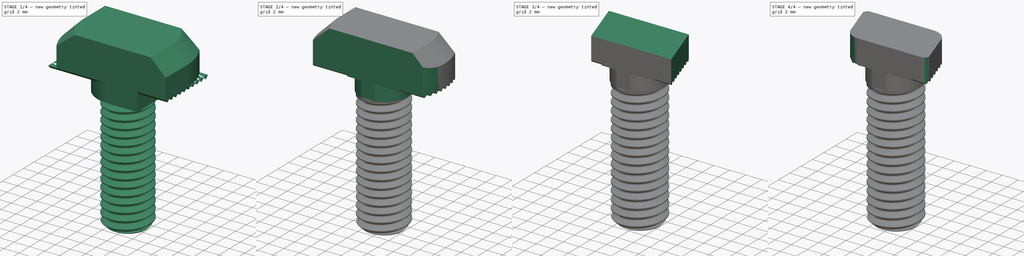
[diagram: build sequence overview — one tinted view per stage of 4, left to right]
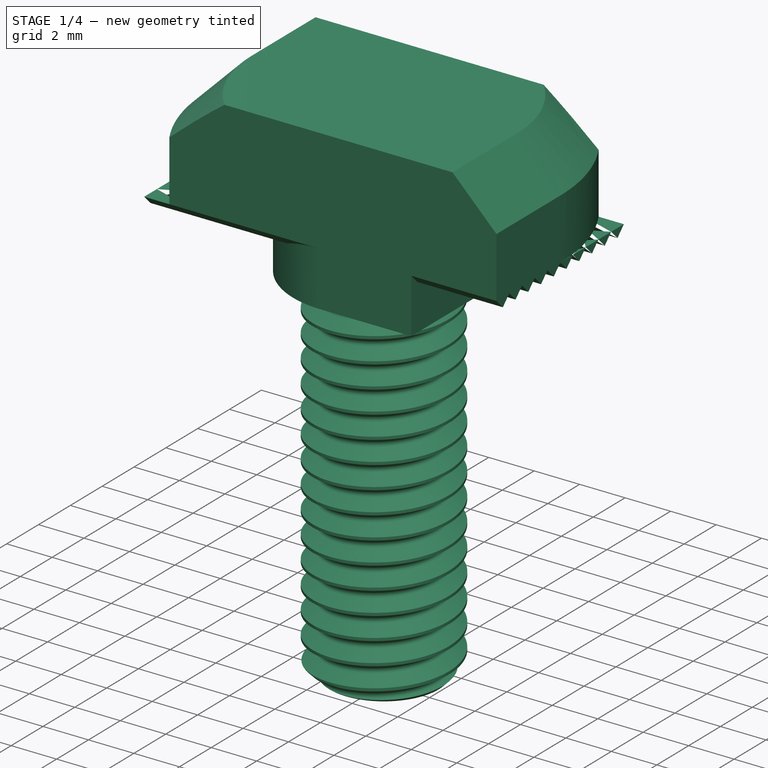
[diagram: stage 1 of 4 — iso view after this stage's code; geometry added in this stage tinted green]
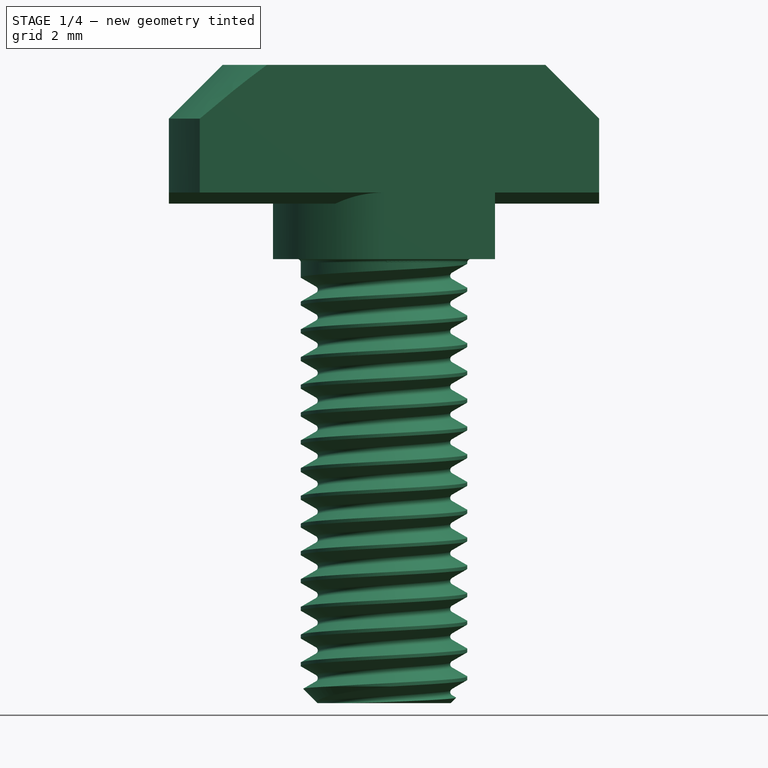
[diagram: stage 1 of 4 — front view after this stage's code; geometry added in this stage tinted green]
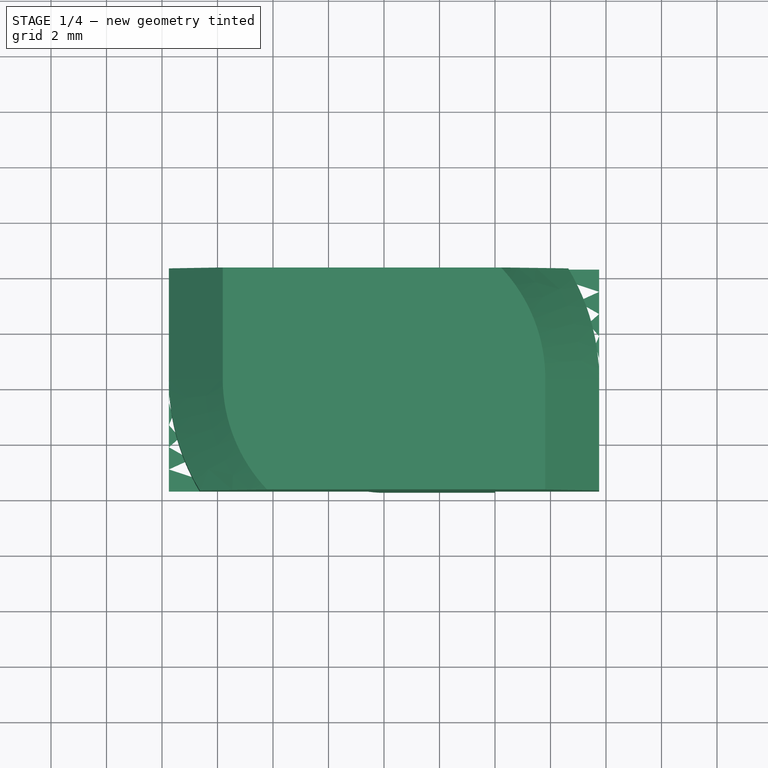
[diagram: stage 1 of 4 — top view after this stage's code; geometry added in this stage tinted green]
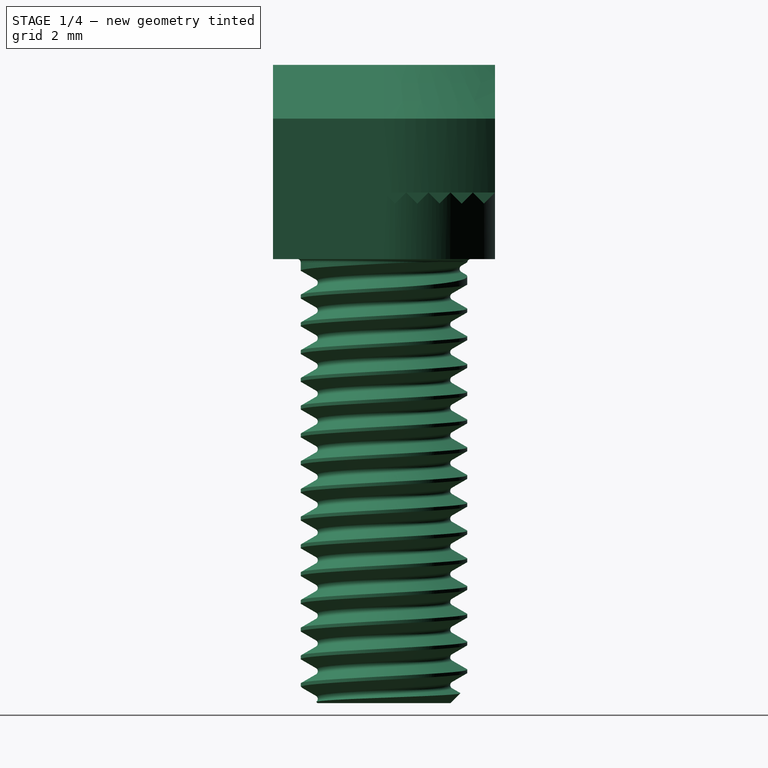
[diagram: stage 1 of 4 — right view after this stage's code; geometry added in this stage tinted green]
FCSTD DOCUMENT  (FreeCAD 2024.2R37179 (Git))
Label: T nut M6
License: All rights reserved
LicenseURL: https://en.wikipedia.org/wiki/All_rights_reserved
objects: Sketcher::SketchObject×6, PartDesign::Pocket×6, PartDesign::Fillet×2, Part::FeaturePython×1, PartDesign::FeatureBase×1, PartDesign::Body×1
note: 25 computed .brp shape members not serialized (recipe doc carries the construction recipe); baked Part::Feature solids carry a one-line shape summary decoded from their .brp

FEATURE [Part::FeaturePython] TSlot  label="M6x16 x 30 series-TSlot"  # WARN: FeaturePython — macro-defined, semantics opaque (R4)
  Diameter = 2
  Invert = false
  LeftHanded = false
  Length = 1
  LengthCustom = 12
  MatchOuter = false
  OffsetAngle = 0
  SlotWidth = 0
  Thread = true
  Type = 0
FEATURE [PartDesign::FeatureBase] BaseFeature
  BaseFeature = -> TSlot
  Suppressed = false
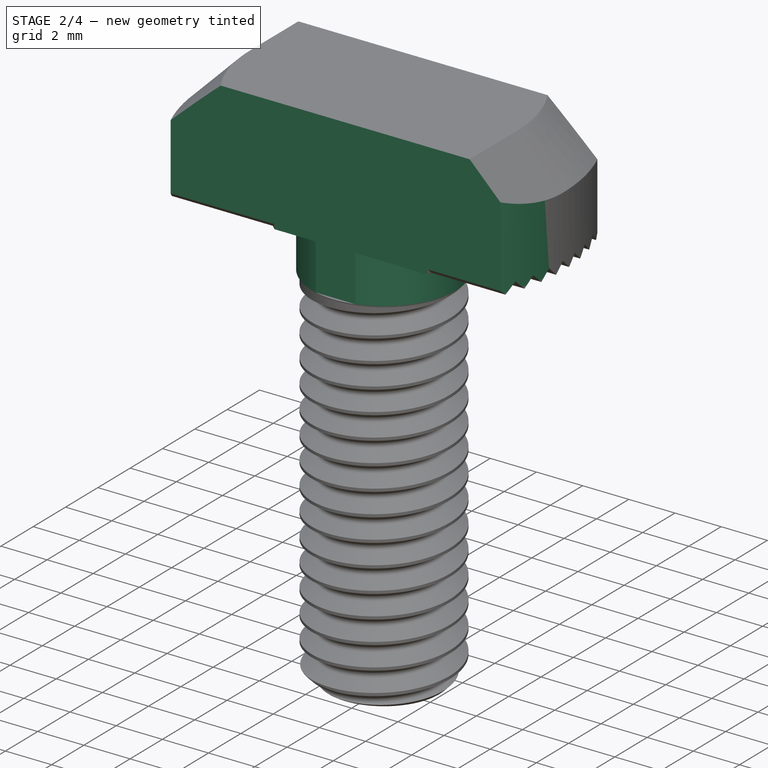
[diagram: stage 2 of 4 — iso view after this stage's code; geometry added in this stage tinted green]
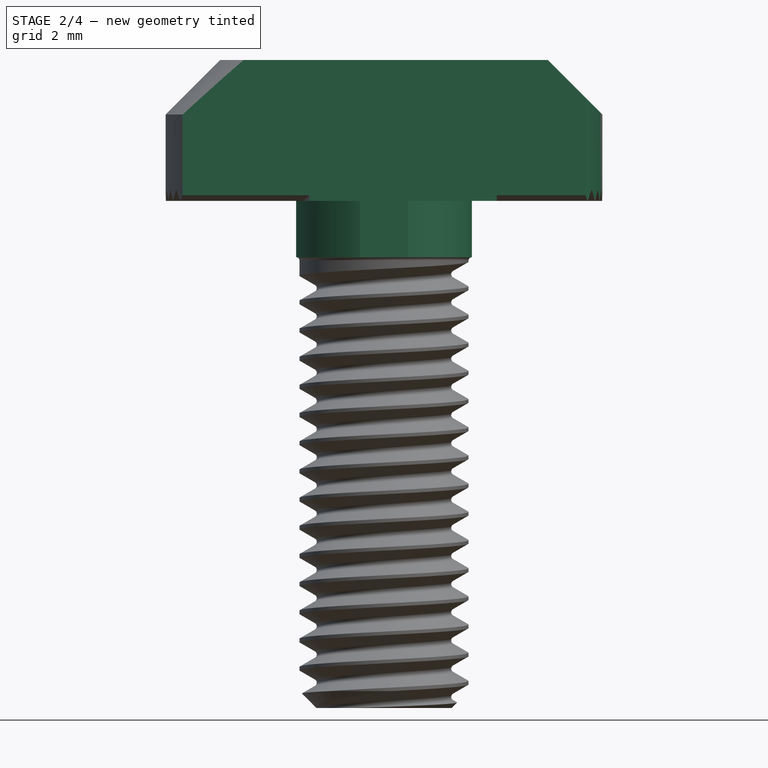
[diagram: stage 2 of 4 — front view after this stage's code; geometry added in this stage tinted green]
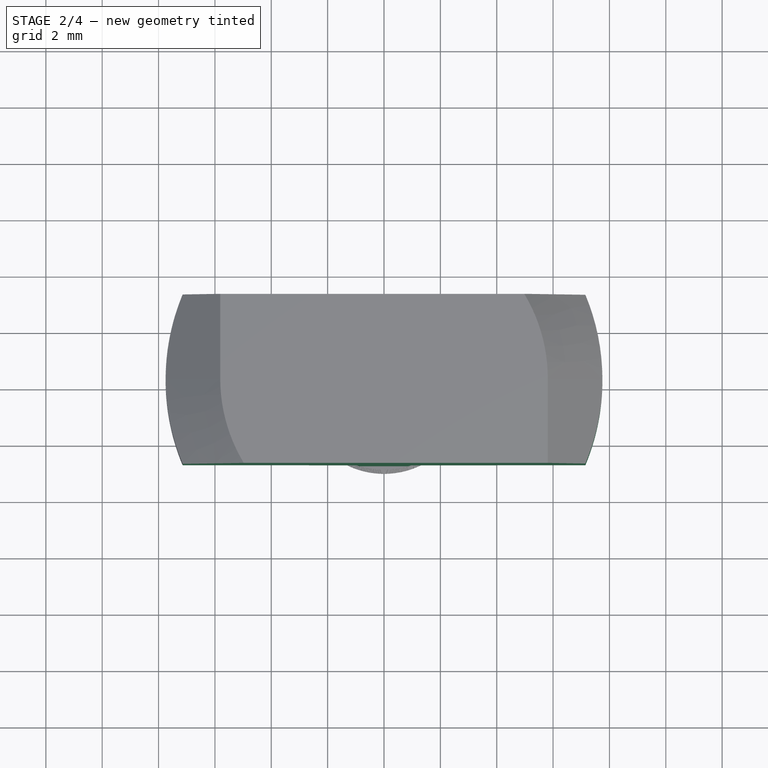
[diagram: stage 2 of 4 — top view after this stage's code; geometry added in this stage tinted green]
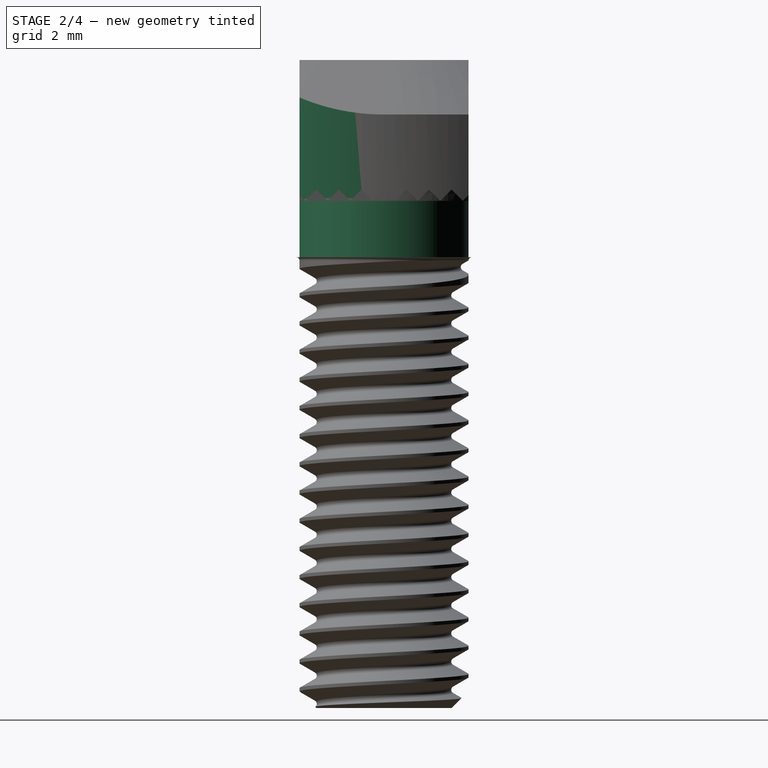
[diagram: stage 2 of 4 — right view after this stage's code; geometry added in this stage tinted green]
FEATURE [Sketcher::SketchObject] Sketch
  AttachmentSupport = -> [XY_Plane]
  FullyConstrained = false
  MapMode = 5
  sketch-geometry (10):
    g0: LineSegment StartX=-20.0109 StartY=-3 StartZ=0 EndX=20.0109 EndY=-3 EndZ=0
    g1: LineSegment StartX=20.0109 StartY=-3 StartZ=0 EndX=20.0109 EndY=3 EndZ=0
    g2: LineSegment StartX=20.0109 StartY=3 StartZ=0 EndX=-20.0109 EndY=3 EndZ=0
    g3: LineSegment StartX=-20.0109 StartY=3 StartZ=0 EndX=-20.0109 EndY=-3 EndZ=0
    g4: GeomPoint X=0 Y=0 Z=0
    g5: LineSegment StartX=-36.8923 StartY=22.255 StartZ=0 EndX=-36.8923 EndY=-22.255 EndZ=0
    g6: LineSegment StartX=-36.8923 StartY=-22.255 StartZ=0 EndX=36.8923 EndY=-22.255 EndZ=0
    g7: LineSegment StartX=36.8923 StartY=-22.255 StartZ=0 EndX=36.8923 EndY=22.255 EndZ=0
    g8: LineSegment StartX=36.8923 StartY=22.255 StartZ=0 EndX=-36.8923 EndY=22.255 EndZ=0
    g9: GeomPoint X=0 Y=0 Z=0
  constraints (21):
    c: Coincident(g0,g1)
    c: Coincident(g1,g2)
    c: Coincident(g2,g3)
    c: Coincident(g3,g0)
    c: Horizontal(g0)
    c: Horizontal(g2)
    c: Vertical(g1)
    c: Vertical(g3)
    c: Symmetric(g2,g0,g4)
    c: Distance(g0,g2) = 6
    c: Coincident(g4,g-1)
    c: Coincident(g5,g6)
    c: Coincident(g6,g7)
    c: Coincident(g7,g8)
    c: Coincident(g8,g5)
    c: Vertical(g5)
    c: Vertical(g7)
    c: Horizontal(g6)
    c: Horizontal(g8)
    c: Symmetric(g7,g5,g9)
    c: Coincident(g9,g4)
FEATURE [PartDesign::Pocket] Pocket
  BaseFeature = -> BaseFeature
  Direction = (0,0,-1)
  Length = 12
  Length2 = 5
  Profile = -> Sketch
  ReferenceAxis = -> Sketch [N_Axis]
  Refine = true
  Reversed = true
  Suppressed = false
  Type = 0
FEATURE [Sketcher::SketchObject] Sketch001
  AttachmentSupport = -> [Pocket]
  ExternalGeometry = -> [Pocket]
  FullyConstrained = false
  MapMode = 5
  Placement = pos=(0,0,0) rot=(1,0,0;3.14159rad)
  sketch-geometry (6):
    g0: Circle CenterX=0 CenterY=0 CenterZ=0 NormalX=0 NormalY=0 NormalZ=1 AngleXU=0 Radius=3.12
    g1: LineSegment StartX=-5 StartY=5 StartZ=0 EndX=-5 EndY=-5 EndZ=0
    g2: LineSegment StartX=-5 StartY=-5 StartZ=0 EndX=5 EndY=-5 EndZ=0
    g3: LineSegment StartX=5 StartY=-5 StartZ=0 EndX=5 EndY=5 EndZ=0
    g4: LineSegment StartX=5 StartY=5 StartZ=0 EndX=-5 EndY=5 EndZ=0
    g5: GeomPoint X=0 Y=0 Z=0
  constraints (12):
    c: Coincident(g0,g-1)
    c: PointOnObject(g-7,g0)
    c: Coincident(g1,g2)
    c: Coincident(g2,g3)
    c: Coincident(g3,g4)
    c: Coincident(g4,g1)
    c: Vertical(g1)
    c: Vertical(g3)
    c: Horizontal(g2)
    c: Horizontal(g4)
    c: Symmetric(g3,g1,g5)
    c: Coincident(g5,g0)
FEATURE [PartDesign::Pocket] Pocket001
  BaseFeature = -> Pocket
  Direction = (0,0,1)
  Length = 2
  Length2 = 5
  Profile = -> Sketch001
  ReferenceAxis = -> Sketch001 [N_Axis]
  Refine = true
  Suppressed = false
  Type = 0
FEATURE [Sketcher::SketchObject] Sketch002
  AttachmentSupport = -> [Pocket001]
  ExternalGeometry = -> [Pocket001]
  FullyConstrained = false
  MapMode = 5
  Placement = pos=(0,0,2.4) rot=(0,0,1;0rad)
  sketch-geometry (6):
    g0: Circle CenterX=0 CenterY=0 CenterZ=0 NormalX=0 NormalY=0 NormalZ=1 AngleXU=0 Radius=7.75
    g1: LineSegment StartX=-12 StartY=11 StartZ=0 EndX=-12 EndY=-11 EndZ=0
    g2: LineSegment StartX=-12 StartY=-11 StartZ=0 EndX=12 EndY=-11 EndZ=0
    g3: LineSegment StartX=12 StartY=-11 StartZ=0 EndX=12 EndY=11 EndZ=0
    g4: LineSegment StartX=12 StartY=11 StartZ=0 EndX=-12 EndY=11 EndZ=0
    g5: GeomPoint X=0 Y=0 Z=0
  constraints (12):
    c: Coincident(g0,g-1)
    c: PointOnObject(g-3,g0)
    c: Coincident(g1,g2)
    c: Coincident(g2,g3)
    c: Coincident(g3,g4)
    c: Coincident(g4,g1)
    c: Vertical(g1)
    c: Vertical(g3)
    c: Horizontal(g2)
    c: Horizontal(g4)
    c: Symmetric(g3,g1,g5)
    c: Coincident(g5,g0)
FEATURE [PartDesign::Pocket] Pocket002
  BaseFeature = -> Pocket001
  Direction = (0,0,-1)
  Length = 20
  Length2 = 20
  Midplane = true
  Profile = -> Sketch002
  ReferenceAxis = -> Sketch002 [N_Axis]
  Refine = true
  Suppressed = false
  Type = 4
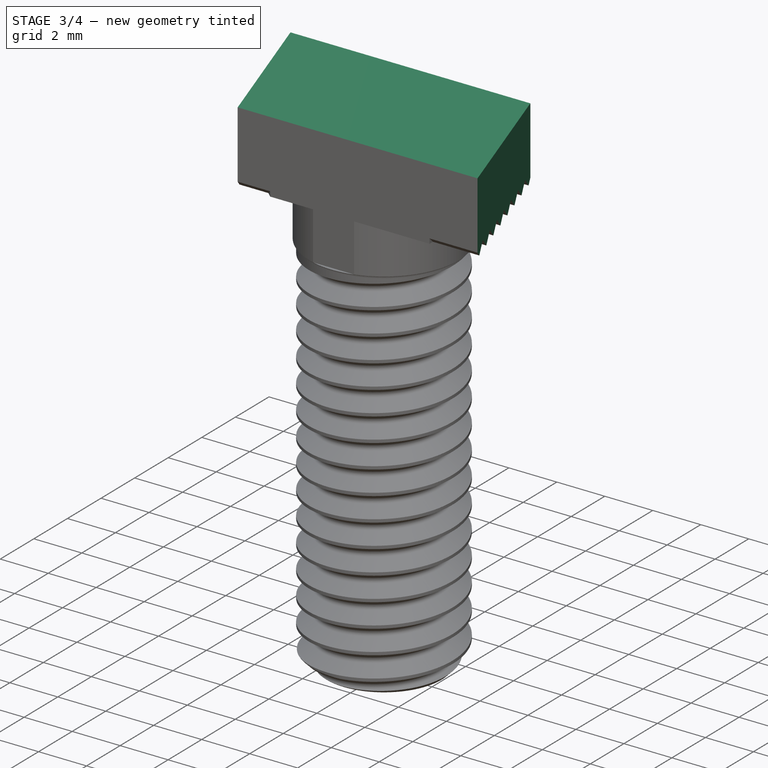
[diagram: stage 3 of 4 — iso view after this stage's code; geometry added in this stage tinted green]
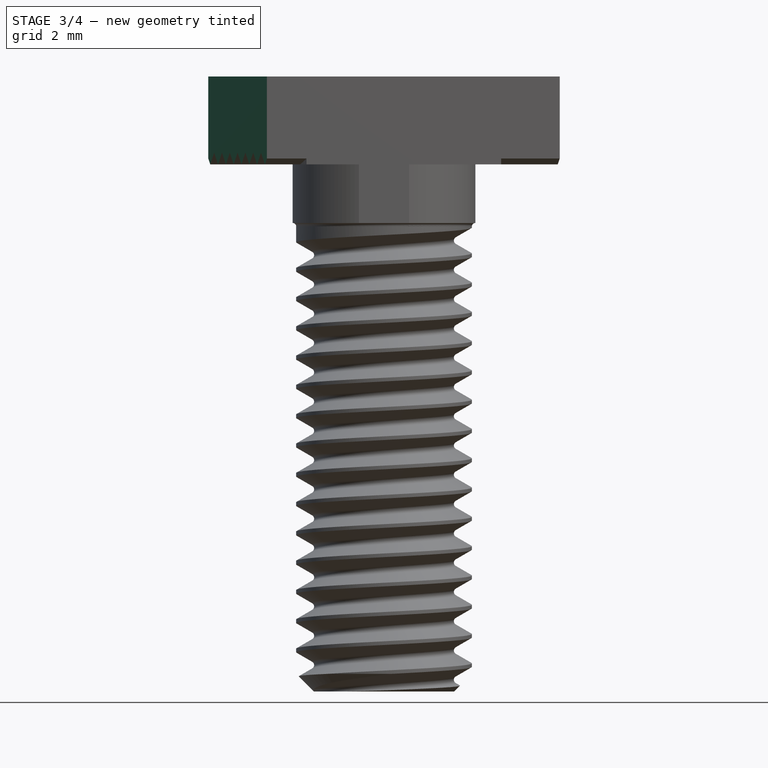
[diagram: stage 3 of 4 — front view after this stage's code; geometry added in this stage tinted green]
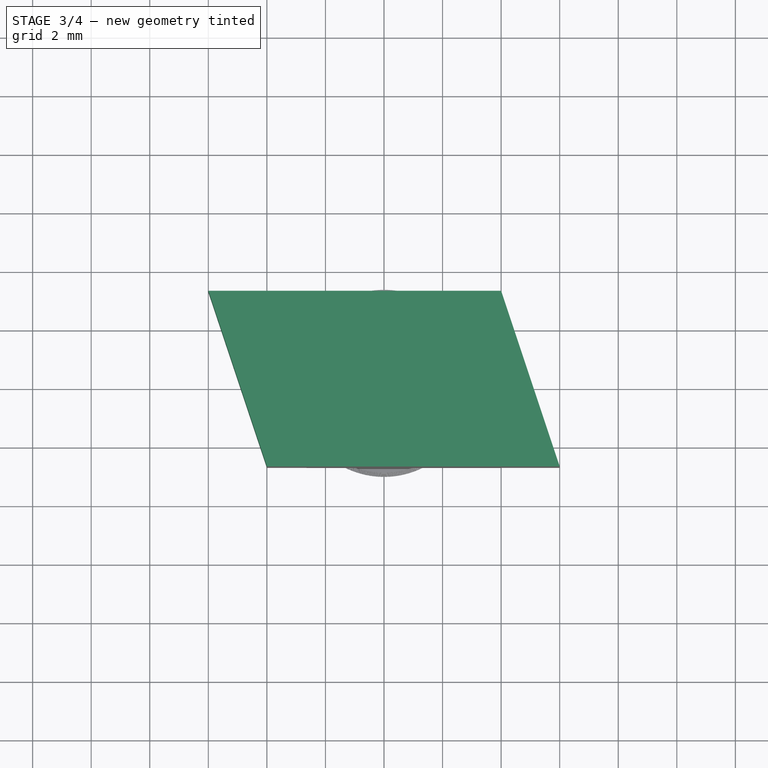
[diagram: stage 3 of 4 — top view after this stage's code; geometry added in this stage tinted green]
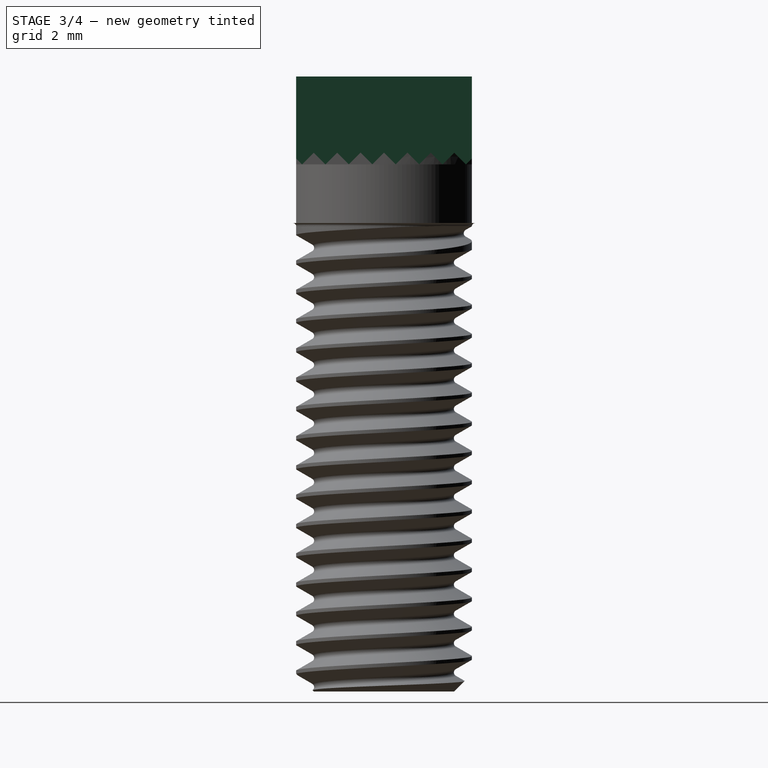
[diagram: stage 3 of 4 — right view after this stage's code; geometry added in this stage tinted green]
FEATURE [Sketcher::SketchObject] Sketch003
  AttachmentSupport = -> [Pocket002]
  FullyConstrained = false
  MapMode = 5
  Placement = pos=(0,0,7) rot=(0,0,1;0rad)
  sketch-geometry (5):
    g0: LineSegment StartX=-11.3546 StartY=6.46525 StartZ=0 EndX=-11.3546 EndY=-6.46525 EndZ=0
    g1: LineSegment StartX=-11.3546 StartY=-6.46525 StartZ=0 EndX=11.3546 EndY=-6.46525 EndZ=0
    g2: LineSegment StartX=11.3546 StartY=-6.46525 StartZ=0 EndX=11.3546 EndY=6.46525 EndZ=0
    g3: LineSegment StartX=11.3546 StartY=6.46525 StartZ=0 EndX=-11.3546 EndY=6.46525 EndZ=0
    g4: GeomPoint X=0 Y=0 Z=0
  constraints (10):
    c: Coincident(g0,g1)
    c: Coincident(g1,g2)
    c: Coincident(g2,g3)
    c: Coincident(g3,g0)
    c: Vertical(g0)
    c: Vertical(g2)
    c: Horizontal(g1)
    c: Horizontal(g3)
    c: Symmetric(g2,g0,g4)
    c: Coincident(g4,g-1)
FEATURE [PartDesign::Pocket] Pocket003
  BaseFeature = -> Pocket002
  Direction = (0,0,-1)
  Length = 2
  Length2 = 5
  Profile = -> Sketch003
  ReferenceAxis = -> Sketch003 [N_Axis]
  Refine = true
  Suppressed = false
  Type = 0
FEATURE [Sketcher::SketchObject] Sketch004
  AttachmentSupport = -> [Pocket003]
  FullyConstrained = false
  MapMode = 5
  Placement = pos=(0,0,5) rot=(0,0,1;0rad)
  sketch-geometry (10):
    g0: LineSegment StartX=-6 StartY=-5 StartZ=0 EndX=6 EndY=-5 EndZ=0
    g1: LineSegment StartX=6 StartY=-5 StartZ=0 EndX=6 EndY=5 EndZ=0
    g2: LineSegment StartX=6 StartY=5 StartZ=0 EndX=-6 EndY=5 EndZ=0
    g3: LineSegment StartX=-6 StartY=5 StartZ=0 EndX=-6 EndY=-5 EndZ=0
    g4: GeomPoint X=-1e-16 Y=0 Z=0
    g5: LineSegment StartX=-15.568 StartY=9.72914 StartZ=0 EndX=-15.568 EndY=-9.72914 EndZ=0
    g6: LineSegment StartX=-15.568 StartY=-9.72914 StartZ=0 EndX=15.568 EndY=-9.72914 EndZ=0
    g7: LineSegment StartX=15.568 StartY=-9.72914 StartZ=0 EndX=15.568 EndY=9.72914 EndZ=0
    g8: LineSegment StartX=15.568 StartY=9.72914 StartZ=0 EndX=-15.568 EndY=9.72914 EndZ=0
    g9: GeomPoint X=-1e-16 Y=0 Z=0
  constraints (22):
    c: Coincident(g0,g1)
    c: Coincident(g1,g2)
    c: Coincident(g2,g3)
    c: Coincident(g3,g0)
    c: Horizontal(g0)
    c: Horizontal(g2)
    c: Vertical(g1)
    c: Vertical(g3)
    c: Symmetric(g2,g0,g4)
    c: Distance(g1,g3) = 12
    c: Distance(g0,g2) = 10
    c: Coincident(g4,g-1)
    c: Coincident(g5,g6)
    c: Coincident(g6,g7)
    c: Coincident(g7,g8)
    c: Coincident(g8,g5)
    c: Vertical(g5)
    c: Vertical(g7)
    c: Horizontal(g6)
    c: Horizontal(g8)
    c: Symmetric(g7,g5,g9)
    c: Coincident(g9,g4)
FEATURE [PartDesign::Pocket] Pocket004
  BaseFeature = -> Pocket003
  Direction = (0,0,-1)
  Length = 5
  Length2 = 5
  Profile = -> Sketch004
  ReferenceAxis = -> Sketch004 [N_Axis]
  Refine = true
  Suppressed = false
  Type = 1
FEATURE [Sketcher::SketchObject] Sketch005
  AttachmentSupport = -> [Pocket004]
  ExternalGeometry = -> [Pocket004]
  FullyConstrained = false
  MapMode = 5
  Placement = pos=(0,0,5) rot=(0,0,1;0rad)
  sketch-geometry (9):
    g0: LineSegment StartX=-6 StartY=3 StartZ=0 EndX=-4 EndY=-3 EndZ=0
    g1: LineSegment StartX=6 StartY=-3 StartZ=0 EndX=4 EndY=3 EndZ=0
    g2: LineSegment StartX=-6 StartY=3 StartZ=0 EndX=4 EndY=3 EndZ=0
    g3: LineSegment StartX=-4 StartY=-3 StartZ=0 EndX=6 EndY=-3 EndZ=0
    g4: LineSegment StartX=-8.20166 StartY=5.23536 StartZ=0 EndX=-8.20166 EndY=-5.23536 EndZ=0
    g5: LineSegment StartX=-8.20166 StartY=-5.23536 StartZ=0 EndX=8.20166 EndY=-5.23536 EndZ=0
    g6: LineSegment StartX=8.20166 StartY=-5.23536 StartZ=0 EndX=8.20166 EndY=5.23536 EndZ=0
    g7: LineSegment StartX=8.20166 StartY=5.23536 StartZ=0 EndX=-8.20166 EndY=5.23536 EndZ=0
    g8: GeomPoint X=0 Y=0 Z=0
  constraints (20):
    c: Coincident(g-3,g0)
    c: DistanceX(g-3,g0) = 2
    c: Horizontal(g-3,g0)
    c: Coincident(g-4,g1)
    c: Horizontal(g1,g-4)
    c: DistanceX(g1,g-4) = 2
    c: Coincident(g0,g2)
    c: Coincident(g2,g1)
    c: Coincident(g0,g3)
    c: Coincident(g3,g1)
    c: Coincident(g4,g5)
    c: Coincident(g5,g6)
    c: Coincident(g6,g7)
    c: Coincident(g7,g4)
    c: Vertical(g4)
    c: Vertical(g6)
    c: Horizontal(g5)
    c: Horizontal(g7)
    c: Symmetric(g6,g4,g8)
    c: Coincident(g8,g-1)
FEATURE [PartDesign::Pocket] Pocket005
  BaseFeature = -> Pocket004
  Direction = (0,0,-1)
  Length = 5
  Length2 = 5
  Profile = -> Sketch005
  ReferenceAxis = -> Sketch005 [N_Axis]
  Refine = true
  Suppressed = false
  Type = 0
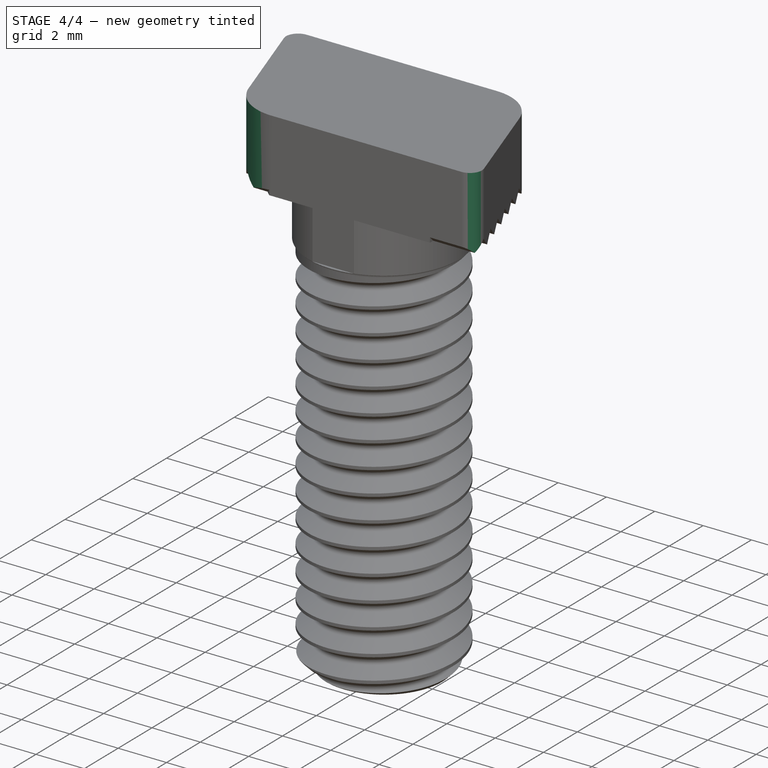
[diagram: stage 4 of 4 — iso view after this stage's code; geometry added in this stage tinted green]
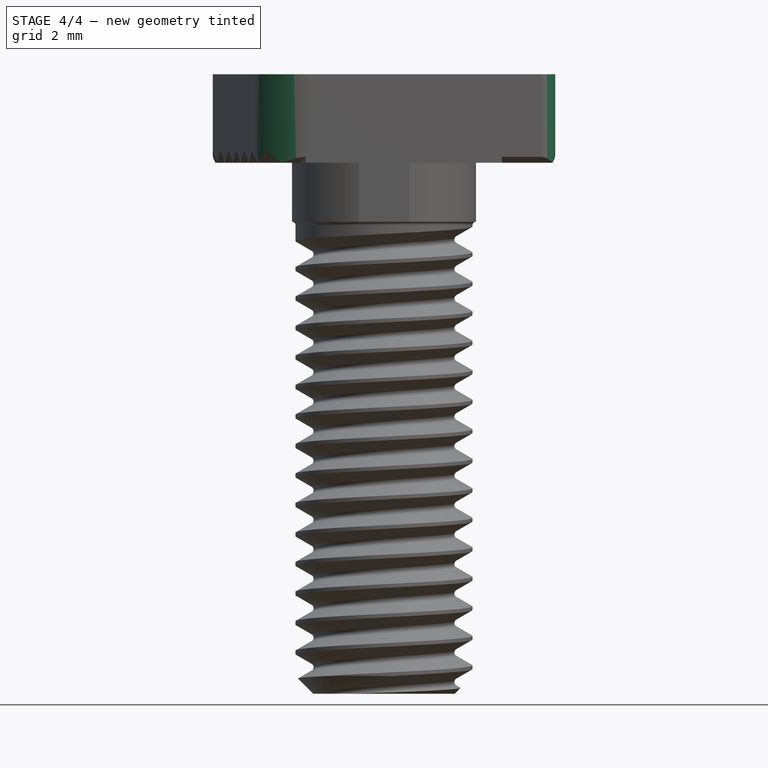
[diagram: stage 4 of 4 — front view after this stage's code; geometry added in this stage tinted green]
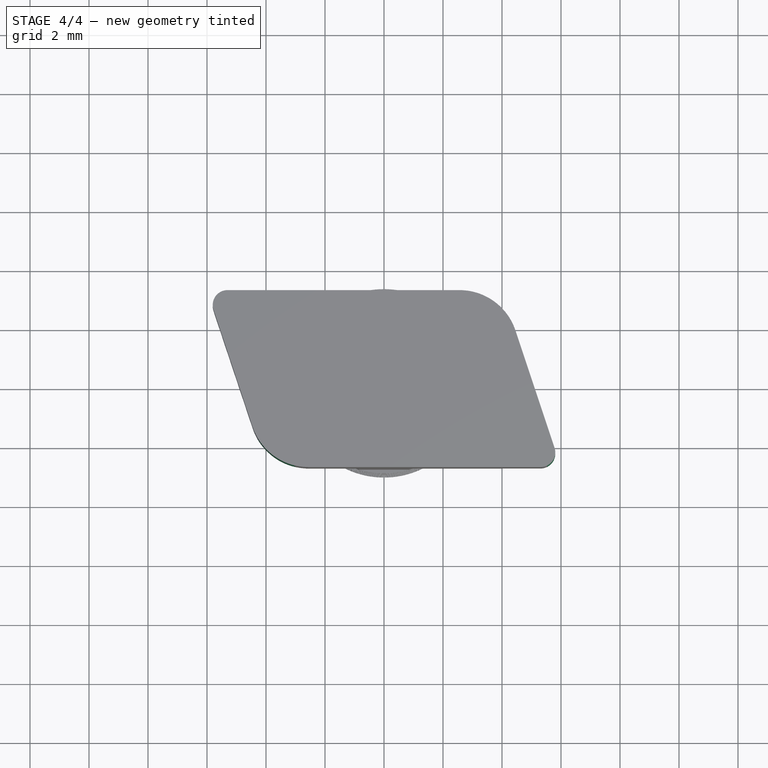
[diagram: stage 4 of 4 — top view after this stage's code; geometry added in this stage tinted green]
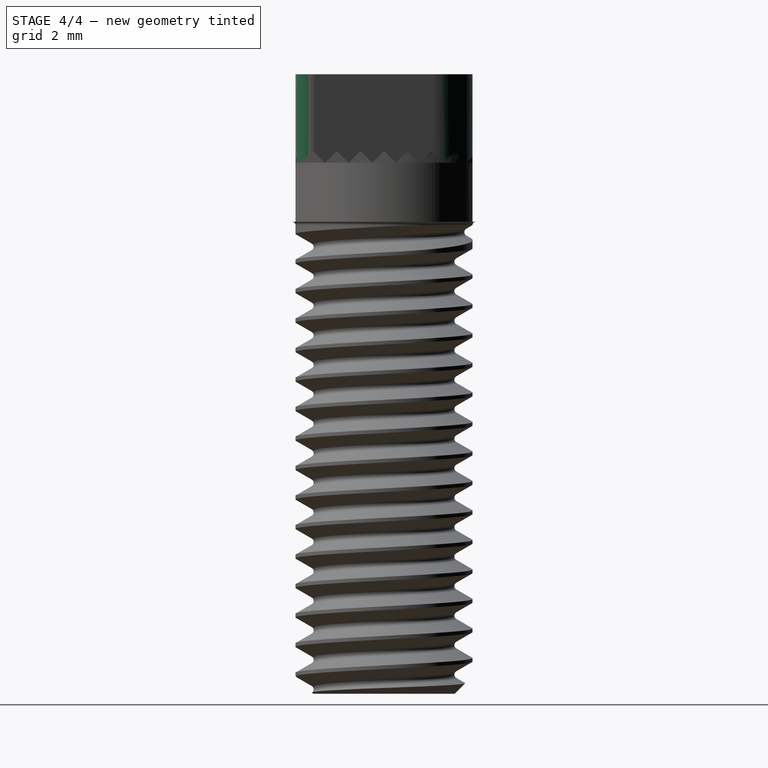
[diagram: stage 4 of 4 — right view after this stage's code; geometry added in this stage tinted green]
FEATURE [PartDesign::Fillet] Fillet
  Base = -> Pocket005 [Edge13,Edge80]
  BaseFeature = -> Pocket005
  Radius = 2
  Refine = true
  SupportTransform = false
  Suppressed = false
  UseAllEdges = false
FEATURE [PartDesign::Fillet] Fillet001
  Base = -> Fillet [Edge38,Edge21]
  BaseFeature = -> Fillet
  Radius = 0.5
  Refine = true
  SupportTransform = false
  Suppressed = false
  UseAllEdges = false
FEATURE [PartDesign::Body] Body
  BaseFeature = -> TSlot
  Group = -> [BaseFeature,Sketch,Pocket,Sketch001,Pocket001,Sketch002,Pocket002,Sketch003,Pocket003,Sketch004,Pocket004,Sketch005,Pocket005,Fillet,Fillet001]
  Origin = -> Origin
  Tip = -> Fillet001
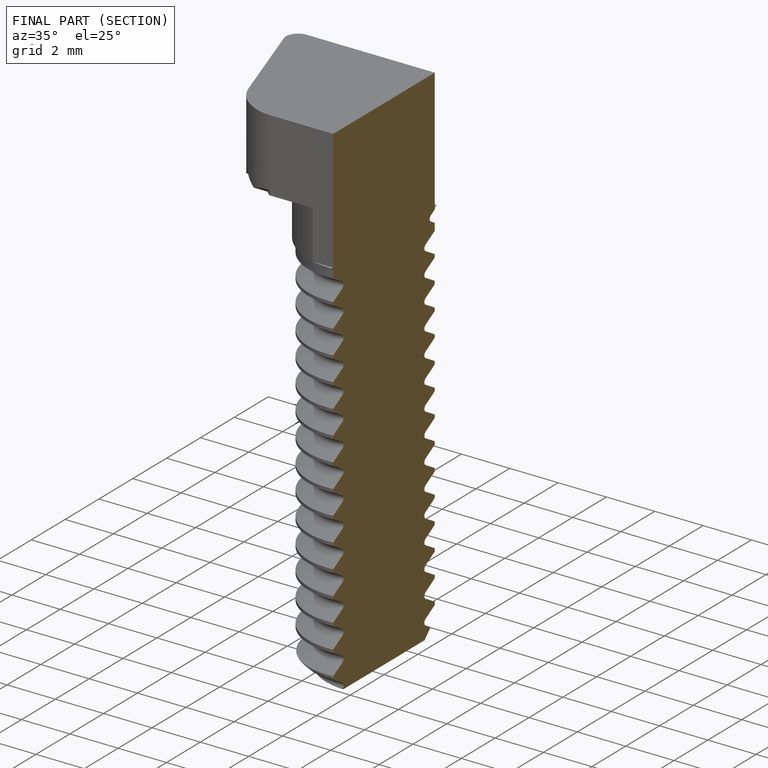
[diagram: finished part — half-section view (interior)]
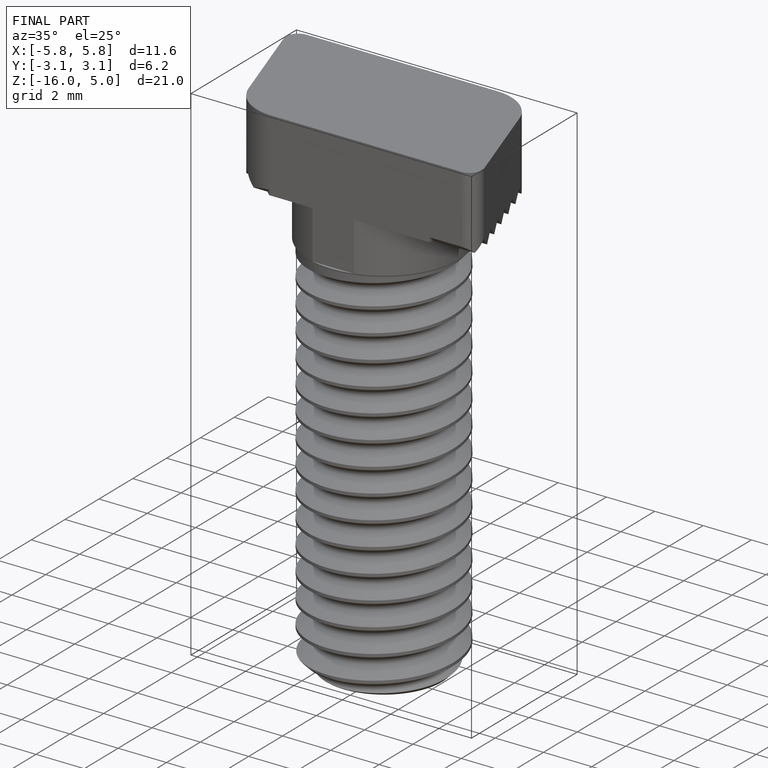
[diagram: finished part — iso view with bounding-box wireframe]
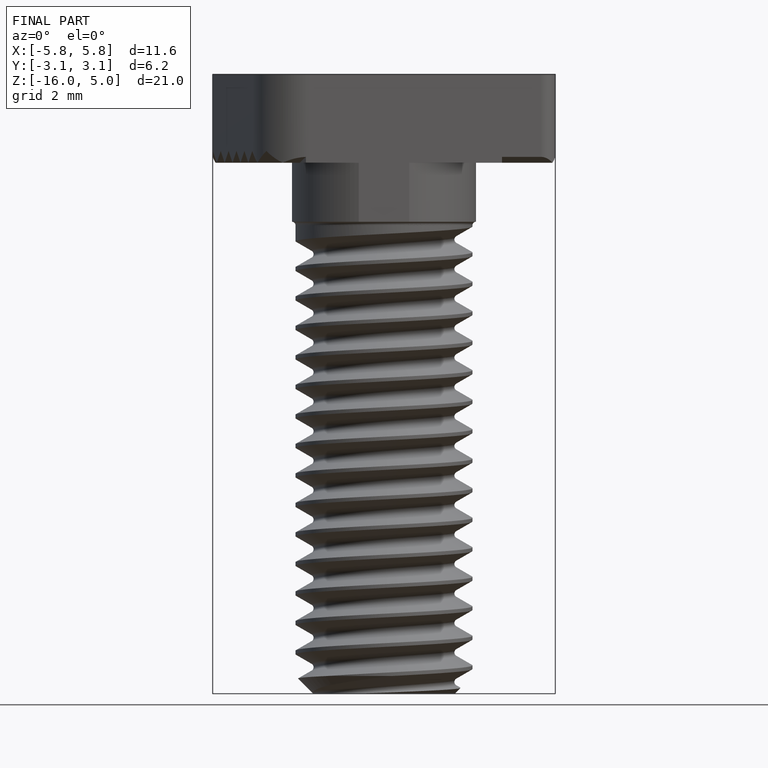
[diagram: finished part — front view with bounding-box wireframe]
